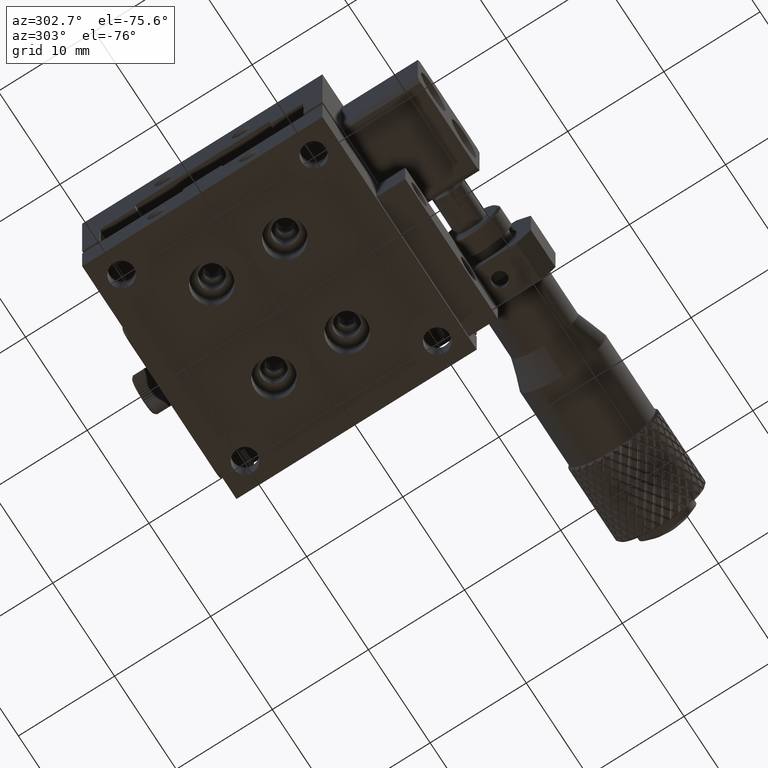
[diagram: clean part render]
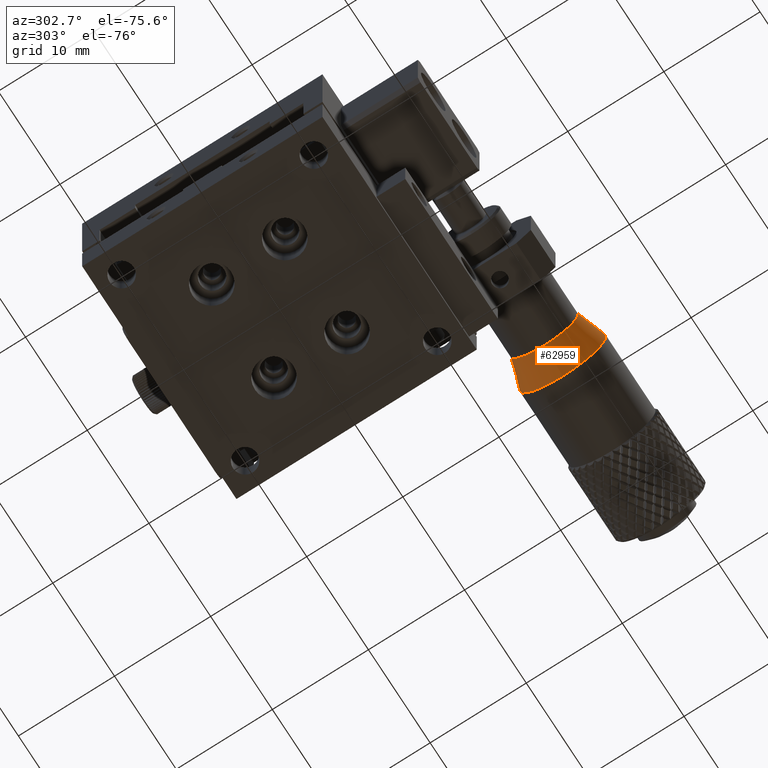
[diagram: same view with one face highlighted and labeled with its STEP entity id]
A machine part, auxiliary view. The second image highlights one B-rep face of the part: STEP entity #62959.
In plain terms, the highlighted conical surface has half-angle 18.435 deg.
Its self-contained STEP definition (entity closure, byte-faithful):
#2673 = CARTESIAN_POINT ( 'NONE',  ( 19.44999999999990337, -17.00000000000000000, 13.00000000000000178 ) ) ;
#4494 = DIRECTION ( 'NONE',  ( 1.000000000000000000, 0.000000000000000000, 0.000000000000000000 ) ) ;
#5906 = FACE_BOUND ( 'NONE', #40045, .T. ) ;
#9779 = VERTEX_POINT ( 'NONE', #2673 ) ;
#12065 = CARTESIAN_POINT ( 'NONE',  ( 19.45000000002183072, -17.00000000000000000, 8.500000000000000000 ) ) ;
#13040 = EDGE_CURVE ( 'NONE', #9779, #9779, #54947, .T. ) ;
#14231 = AXIS2_PLACEMENT_3D ( 'NONE', #34518, #20376, #21308 ) ;
#15399 = VERTEX_POINT ( 'NONE', #22954 ) ;
#15654 = DIRECTION ( 'NONE',  ( 0.000000000000000000, 0.000000000000000000, -1.000000000000000000 ) ) ;
#20376 = DIRECTION ( 'NONE',  ( 1.000000000000000000, -0.000000000000000000, -0.000000000000000000 ) ) ;
#20796 = ORIENTED_EDGE ( 'NONE', *, *, #13040, .F. ) ;
#21308 = DIRECTION ( 'NONE',  ( 0.000000000000000000, 0.000000000000000000, 1.000000000000000000 ) ) ;
#22954 = CARTESIAN_POINT ( 'NONE',  ( 16.45000000003592788, -17.00000000000000000, 4.999999999997499778 ) ) ;
#23223 = CONICAL_SURFACE ( 'NONE', #38303, 4.500000000007275958, 0.3217505543994843564 ) ;
#34518 = CARTESIAN_POINT ( 'NONE',  ( 19.44999999999990337, -17.00000000000000000, 8.500000000000000000 ) ) ;
#38021 = ORIENTED_EDGE ( 'NONE', *, *, #64703, .T. ) ;
#38303 = AXIS2_PLACEMENT_3D ( 'NONE', #12065, #4494, #40403 ) ;
#39205 = CARTESIAN_POINT ( 'NONE',  ( 16.45000000003592788, -17.00000000000000000, 8.500000000000000000 ) ) ;
#40045 = EDGE_LOOP ( 'NONE', ( #38021 ) ) ;
#40403 = DIRECTION ( 'NONE',  ( 0.000000000000000000, 0.000000000000000000, -1.000000000000000000 ) ) ;
#41354 = EDGE_LOOP ( 'NONE', ( #20796 ) ) ;
#42870 = CIRCLE ( 'NONE', #71494, 3.500000000002501110 ) ;
#54947 = CIRCLE ( 'NONE', #14231, 4.500000000000000888 ) ;
#62959 = ADVANCED_FACE ( 'NONE', ( #5906, #69173 ), #23223, .T. ) ;
#64703 = EDGE_CURVE ( 'NONE', #15399, #15399, #42870, .T. ) ;
#69173 = FACE_OUTER_BOUND ( 'NONE', #41354, .T. ) ;
#71494 = AXIS2_PLACEMENT_3D ( 'NONE', #39205, #80299, #15654 ) ;
#80299 = DIRECTION ( 'NONE',  ( 1.000000000000000000, -0.000000000000000000, -0.000000000000000000 ) ) ;